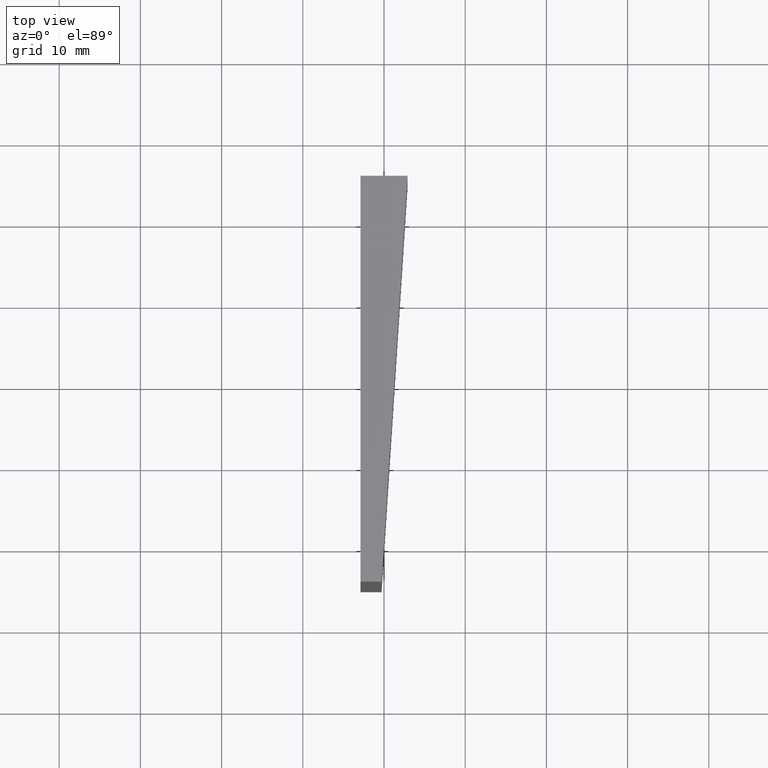
[diagram: clean part render]
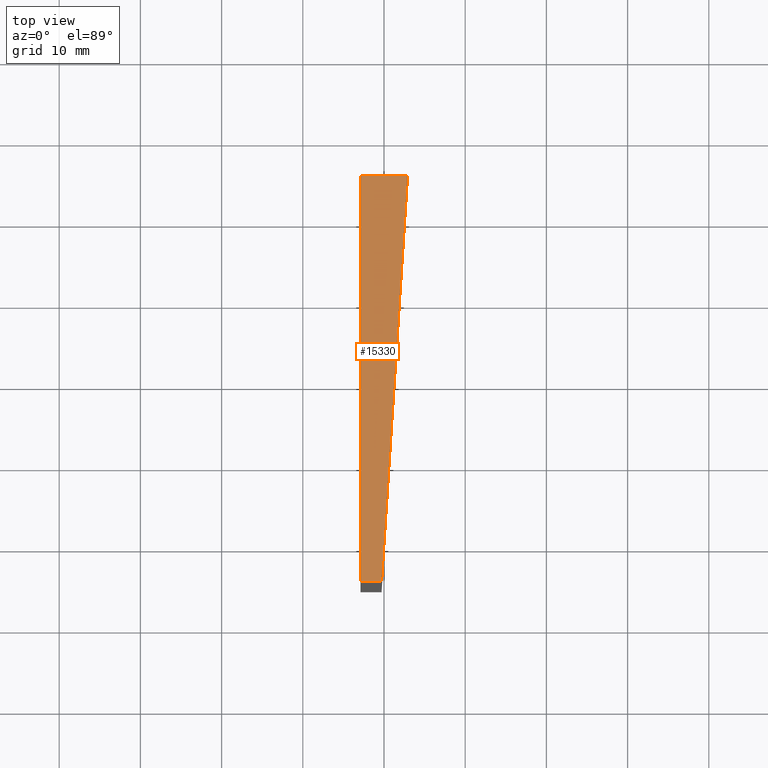
[diagram: same view with one face highlighted and labeled with its STEP entity id]
A machine part, top view. The second image highlights one B-rep face of the part: STEP entity #15330.
In plain terms, the highlighted planar face has unit normal (0, 0, -1).
Its self-contained STEP definition (entity closure, byte-faithful):
#195 = DIRECTION ( 'NONE',  ( 0.06386932928370199491, 0.9979582700578466525, -0.000000000000000000 ) ) ;
#416 = DIRECTION ( 'NONE',  ( -1.000000000000000000, -0.000000000000000000, -0.000000000000000000 ) ) ;
#1134 = FACE_OUTER_BOUND ( 'NONE', #3064, .T. ) ;
#1490 = VERTEX_POINT ( 'NONE', #15967 ) ;
#1843 = ORIENTED_EDGE ( 'NONE', *, *, #10588, .T. ) ;
#2205 = ORIENTED_EDGE ( 'NONE', *, *, #8428, .T. ) ;
#2584 = ORIENTED_EDGE ( 'NONE', *, *, #4481, .T. ) ;
#2939 = DIRECTION ( 'NONE',  ( 1.821459649775647449E-16, -1.000000000000000000, -0.000000000000000000 ) ) ;
#3014 = LINE ( 'NONE', #7990, #4002 ) ;
#3064 = EDGE_LOOP ( 'NONE', ( #2584, #13696, #2205, #1843 ) ) ;
#3706 = CARTESIAN_POINT ( 'NONE',  ( -0.2999999999999929945, -25.00000000000000000, 37.35000000000000142 ) ) ;
#3895 = CARTESIAN_POINT ( 'NONE',  ( -0.2999999999999929945, -25.00000000000000000, 37.35000000000000142 ) ) ;
#4002 = VECTOR ( 'NONE', #416, 1000.000000000000000 ) ;
#4041 = CARTESIAN_POINT ( 'NONE',  ( 2.899999999999997691, 25.00000000000000000, 37.35000000000000142 ) ) ;
#4481 = EDGE_CURVE ( 'NONE', #10673, #13907, #15982, .T. ) ;
#6740 = DIRECTION ( 'NONE',  ( -1.000000000000000000, 0.000000000000000000, -0.000000000000000000 ) ) ;
#7990 = CARTESIAN_POINT ( 'NONE',  ( -2.900000000000002132, 25.00000000000000000, 37.35000000000000142 ) ) ;
#8019 = CARTESIAN_POINT ( 'NONE',  ( 0.000000000000000000, 0.000000000000000000, 37.35000000000000142 ) ) ;
#8428 = EDGE_CURVE ( 'NONE', #8720, #1490, #3014, .T. ) ;
#8720 = VERTEX_POINT ( 'NONE', #10952 ) ;
#9320 = CARTESIAN_POINT ( 'NONE',  ( -2.899999999999992806, -25.00000000000000000, 37.35000000000000142 ) ) ;
#10312 = VECTOR ( 'NONE', #2939, 1000.000000000000000 ) ;
#10588 = EDGE_CURVE ( 'NONE', #1490, #10673, #10889, .T. ) ;
#10624 = LINE ( 'NONE', #4041, #11836 ) ;
#10673 = VERTEX_POINT ( 'NONE', #16018 ) ;
#10709 = PLANE ( 'NONE',  #13329 ) ;
#10889 = LINE ( 'NONE', #9320, #10312 ) ;
#10952 = CARTESIAN_POINT ( 'NONE',  ( 2.899999999999997691, 25.00000000000000000, 37.35000000000000142 ) ) ;
#11085 = DIRECTION ( 'NONE',  ( 1.000000000000000000, -0.000000000000000000, -0.000000000000000000 ) ) ;
#11415 = VECTOR ( 'NONE', #11085, 1000.000000000000000 ) ;
#11836 = VECTOR ( 'NONE', #195, 1000.000000000000114 ) ;
#13329 = AXIS2_PLACEMENT_3D ( 'NONE', #8019, #14561, #6740 ) ;
#13696 = ORIENTED_EDGE ( 'NONE', *, *, #14712, .T. ) ;
#13907 = VERTEX_POINT ( 'NONE', #3895 ) ;
#14561 = DIRECTION ( 'NONE',  ( 0.000000000000000000, 0.000000000000000000, -1.000000000000000000 ) ) ;
#14712 = EDGE_CURVE ( 'NONE', #13907, #8720, #10624, .T. ) ;
#15330 = ADVANCED_FACE ( 'NONE', ( #1134 ), #10709, .F. ) ;
#15967 = CARTESIAN_POINT ( 'NONE',  ( -2.900000000000002132, 25.00000000000000000, 37.35000000000000142 ) ) ;
#15982 = LINE ( 'NONE', #3706, #11415 ) ;
#16018 = CARTESIAN_POINT ( 'NONE',  ( -2.899999999999992806, -25.00000000000000000, 37.35000000000000142 ) ) ;